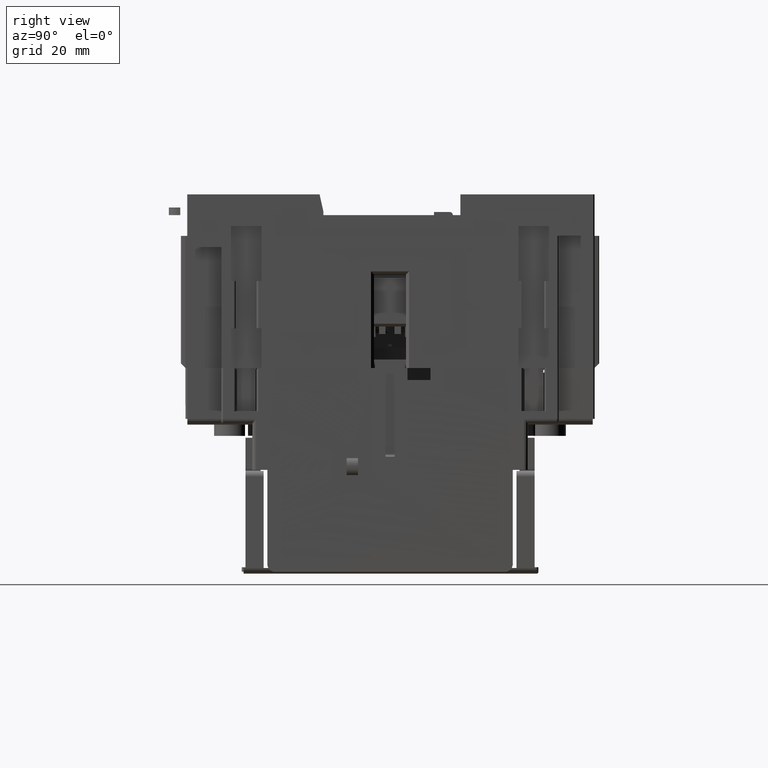
[diagram: clean part render]
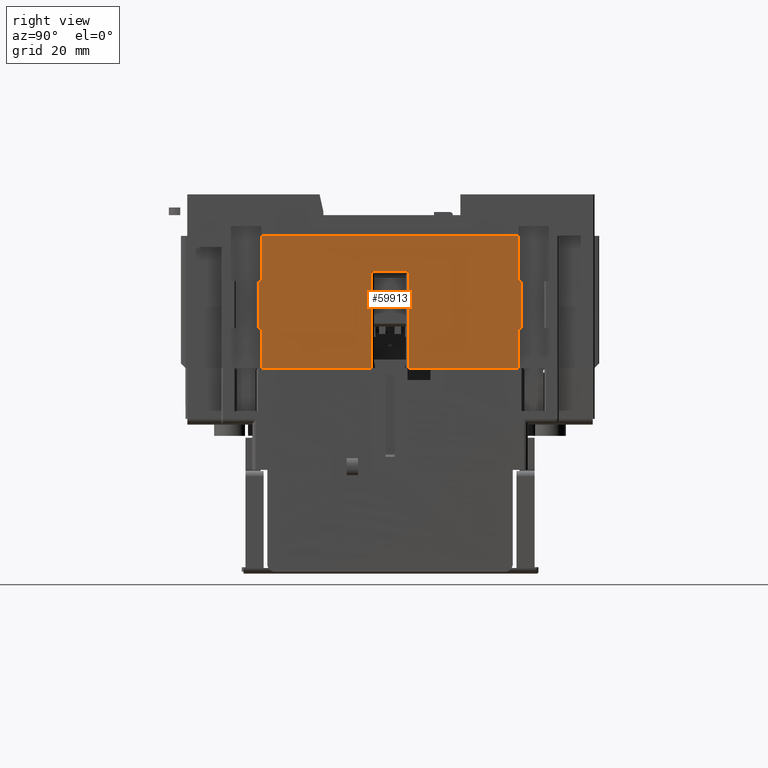
[diagram: same view with one face highlighted and labeled with its STEP entity id]
A machine part, right view. The second image highlights one B-rep face of the part: STEP entity #59913.
In plain terms, the highlighted planar face has unit normal (1, -0, 0).
Its self-contained STEP definition (entity closure, byte-faithful):
#20797=DIRECTION('',(1.065003498888E-7,9.999999999999E-1,4.269456228033E-7));
#20798=VECTOR('',#20797,2.900368247958E1);
#20799=CARTESIAN_POINT('',(2.034924761124E2,4.196186388924E2,
-6.050395725110E1));
#20800=LINE('',#20799,#20798);
#29714=DIRECTION('',(2.864294635510E-6,-2.428708206203E-6,-9.999999999929E-1));
#29715=VECTOR('',#29714,1.199966324400E1);
#29716=CARTESIAN_POINT('',(2.034924575155E2,3.805213591753E2,
-2.550337766532E1));
#29717=LINE('',#29716,#29715);
#29738=DIRECTION('',(1.051012640008E-5,-9.999999999448E-1,-1.134993749500E-9));
#29739=VECTOR('',#29738,1.010006064377E1);
#29740=CARTESIAN_POINT('',(2.034924221392E2,4.196200697112E2,
-3.490388285753E1));
#29741=LINE('',#29740,#29739);
#29742=DIRECTION('',(-4.092483427869E-6,-4.577789379675E-5,-9.999999989438E-1));
#29743=VECTOR('',#29742,2.560005144642E1);
#29744=CARTESIAN_POINT('',(2.034925282922E2,4.095200090680E2,
-3.490388286899E1));
#29745=LINE('',#29744,#29743);
#29746=DIRECTION('',(2.027666746453E-6,-9.999999999979E-1,-2.833154451986E-7));
#29747=VECTOR('',#29746,2.899752181532E1);
#29748=CARTESIAN_POINT('',(2.034924235244E2,4.095188371515E2,
-6.050393428838E1));
#29749=LINE('',#29748,#29747);
#29750=DIRECTION('',(4.964077475271E-6,-9.999999999786E-1,4.263811843559E-6));
#29751=VECTOR('',#29750,7.908832481797E-1);
#29752=CARTESIAN_POINT('',(2.034924710953E2,3.805213540528E2,
-5.000302312349E1));
#29753=LINE('',#29752,#29751);
#29754=DIRECTION('',(2.180536077981E-5,9.999999995911E-1,-1.849987697361E-5));
#29755=VECTOR('',#29754,7.908591406347E-1);
#29756=CARTESIAN_POINT('',(2.034924746411E2,3.797304708913E2,
-3.750302627843E1));
#29757=LINE('',#29756,#29755);
#29758=DIRECTION('',(1.300169915368E-8,9.999999999999E-1,-5.416825279869E-7));
#29759=VECTOR('',#29758,6.810100582836E1);
#29760=CARTESIAN_POINT('',(2.034924575155E2,3.805213591753E2,
-2.550337766532E1));
#29761=LINE('',#29760,#29759);
#29762=DIRECTION('',(-1.105153212796E-5,9.999999998858E-1,1.030707914901E-5));
#29763=VECTOR('',#29762,7.917482980699E-1);
#29764=CARTESIAN_POINT('',(2.034924842704E2,4.486223358598E2,
-3.750317469102E1));
#29765=LINE('',#29764,#29763);
#29766=DIRECTION('',(3.043643005562E-8,0.E0,-1.E0));
#29767=VECTOR('',#29766,1.249999579632E1);
#29768=CARTESIAN_POINT('',(2.034924755203E2,4.494140841578E2,
-3.750316653041E1));
#29769=LINE('',#29768,#29767);
#29770=DIRECTION('',(-1.079123286428E-5,-9.999999999411E-1,1.125355016422E-6));
#29771=VECTOR('',#29770,7.917212728375E-1);
#29772=CARTESIAN_POINT('',(2.034924759008E2,4.494140841578E2,
-5.000316232673E1));
#29773=LINE('',#29772,#29771);
#29774=DIRECTION('',(-2.108321906519E-6,5.589119551457E-5,9.999999984359E-1));
#29775=VECTOR('',#29774,2.560007443362E1);
#29776=CARTESIAN_POINT('',(2.034924761124E2,4.196186388924E2,
-6.050395725110E1));
#29777=LINE('',#29776,#29775);
#29810=DIRECTION('',(1.069083291775E-6,-3.686968096631E-6,-9.999999999926E-1));
#29811=VECTOR('',#29810,1.050091938041E1);
#29812=CARTESIAN_POINT('',(2.034924710953E2,3.805213540528E2,
-5.000302312349E1));
#29813=LINE('',#29812,#29811);
#29823=DIRECTION('',(3.041821625089E-8,-6.931108127327E-9,-1.E0));
#29824=VECTOR('',#29823,1.249999347288E1);
#29825=CARTESIAN_POINT('',(2.034924746411E2,3.797304708913E2,
-3.750302627843E1));
#29826=LINE('',#29825,#29824);
#29860=DIRECTION('',(-2.155830064989E-6,2.428701058651E-6,9.999999999947E-1));
#29861=VECTOR('',#29860,1.199976013664E1);
#29862=CARTESIAN_POINT('',(2.034924842704E2,4.486223358598E2,
-3.750317469102E1));
#29863=LINE('',#29862,#29861);
#30003=DIRECTION('',(-1.127934478328E-6,3.953324668408E-6,9.999999999915E-1));
#30004=VECTOR('',#30003,1.050078343243E1);
#30005=CARTESIAN_POINT('',(2.034924792013E2,4.486223213720E2,
-6.050394486811E1));
#30006=LINE('',#30005,#30004);
#45883=CARTESIAN_POINT('',(2.034924710953E2,3.805213540528E2,
-5.000302312349E1));
#45884=CARTESIAN_POINT('',(2.034924750213E2,3.797304708047E2,
-5.000301975131E1));
#45885=VERTEX_POINT('',#45883);
#45886=VERTEX_POINT('',#45884);
#45887=CARTESIAN_POINT('',(2.034924746411E2,3.797304708913E2,
-3.750302627843E1));
#45888=CARTESIAN_POINT('',(2.034924918861E2,3.805213300316E2,
-3.750304090923E1));
#45889=VERTEX_POINT('',#45887);
#45890=VERTEX_POINT('',#45888);
#45891=CARTESIAN_POINT('',(2.034924575155E2,3.805213591753E2,
-2.550337766532E1));
#45892=CARTESIAN_POINT('',(2.034924584009E2,4.486223650037E2,
-2.550341455445E1));
#45893=VERTEX_POINT('',#45891);
#45894=VERTEX_POINT('',#45892);
#45895=CARTESIAN_POINT('',(2.034924842704E2,4.486223358598E2,
-3.750317469102E1));
#45896=CARTESIAN_POINT('',(2.034924755203E2,4.494140841578E2,
-3.750316653041E1));
#45897=VERTEX_POINT('',#45895);
#45898=VERTEX_POINT('',#45896);
#45899=CARTESIAN_POINT('',(2.034924759008E2,4.494140841578E2,
-5.000316232673E1));
#45900=VERTEX_POINT('',#45899);
#45901=CARTESIAN_POINT('',(2.034924673572E2,4.486223628850E2,
-5.000316143576E1));
#45902=VERTEX_POINT('',#45901);
#49133=CARTESIAN_POINT('',(2.034924823217E2,3.805213153363E2,
-6.050394250382E1));
#49134=VERTEX_POINT('',#49133);
#49135=CARTESIAN_POINT('',(2.034924235244E2,4.095188371515E2,
-6.050393428838E1));
#49136=VERTEX_POINT('',#49135);
#49175=CARTESIAN_POINT('',(2.034925282922E2,4.095200090680E2,
-3.490388286899E1));
#49176=VERTEX_POINT('',#49175);
#49178=CARTESIAN_POINT('',(2.034924221392E2,4.196200697112E2,
-3.490388285753E1));
#49180=VERTEX_POINT('',#49178);
#49181=CARTESIAN_POINT('',(2.034924761124E2,4.196186388924E2,
-6.050395725110E1));
#49182=VERTEX_POINT('',#49181);
#49183=CARTESIAN_POINT('',(2.034924792013E2,4.486223213720E2,
-6.050394486811E1));
#49184=VERTEX_POINT('',#49183);
#59877=CARTESIAN_POINT('',(2.034924752481E2,4.145722774900E2,
-4.300367081958E1));
#59878=DIRECTION('',(1.E0,-1.261884787394E-8,3.043642906367E-8));
#59879=DIRECTION('',(1.261884787394E-8,1.E0,0.E0));
#59880=AXIS2_PLACEMENT_3D('',#59877,#59878,#59879);
#59881=PLANE('',#59880);
#59883=ORIENTED_EDGE('',*,*,#59882,.T.);
#59885=ORIENTED_EDGE('',*,*,#59884,.T.);
#59886=ORIENTED_EDGE('',*,*,#59574,.T.);
#59888=ORIENTED_EDGE('',*,*,#59887,.F.);
#59890=ORIENTED_EDGE('',*,*,#59889,.T.);
#59892=ORIENTED_EDGE('',*,*,#59891,.F.);
#59894=ORIENTED_EDGE('',*,*,#59893,.T.);
#59895=ORIENTED_EDGE('',*,*,#59863,.F.);
#59897=ORIENTED_EDGE('',*,*,#59896,.T.);
#59899=ORIENTED_EDGE('',*,*,#59898,.F.);
#59901=ORIENTED_EDGE('',*,*,#59900,.T.);
#59903=ORIENTED_EDGE('',*,*,#59902,.T.);
#59905=ORIENTED_EDGE('',*,*,#59904,.T.);
#59907=ORIENTED_EDGE('',*,*,#59906,.F.);
#59908=ORIENTED_EDGE('',*,*,#52813,.F.);
#59910=ORIENTED_EDGE('',*,*,#59909,.T.);
#59911=EDGE_LOOP('',(#59883,#59885,#59886,#59888,#59890,#59892,#59894,#59895,
#59897,#59899,#59901,#59903,#59905,#59907,#59908,#59910));
#59912=FACE_OUTER_BOUND('',#59911,.F.);
#59913=ADVANCED_FACE('',(#59912),#59881,.T.);
#52813=EDGE_CURVE('',#49182,#49184,#20800,.T.);
#59574=EDGE_CURVE('',#49136,#49134,#29749,.T.);
#59863=EDGE_CURVE('',#45893,#45890,#29717,.T.);
#59882=EDGE_CURVE('',#49180,#49176,#29741,.T.);
#59884=EDGE_CURVE('',#49176,#49136,#29745,.T.);
#59887=EDGE_CURVE('',#45885,#49134,#29813,.T.);
#59889=EDGE_CURVE('',#45885,#45886,#29753,.T.);
#59891=EDGE_CURVE('',#45889,#45886,#29826,.T.);
#59893=EDGE_CURVE('',#45889,#45890,#29757,.T.);
#59896=EDGE_CURVE('',#45893,#45894,#29761,.T.);
#59898=EDGE_CURVE('',#45897,#45894,#29863,.T.);
#59900=EDGE_CURVE('',#45897,#45898,#29765,.T.);
#59902=EDGE_CURVE('',#45898,#45900,#29769,.T.);
#59904=EDGE_CURVE('',#45900,#45902,#29773,.T.);
#59906=EDGE_CURVE('',#49184,#45902,#30006,.T.);
#59909=EDGE_CURVE('',#49182,#49180,#29777,.T.);